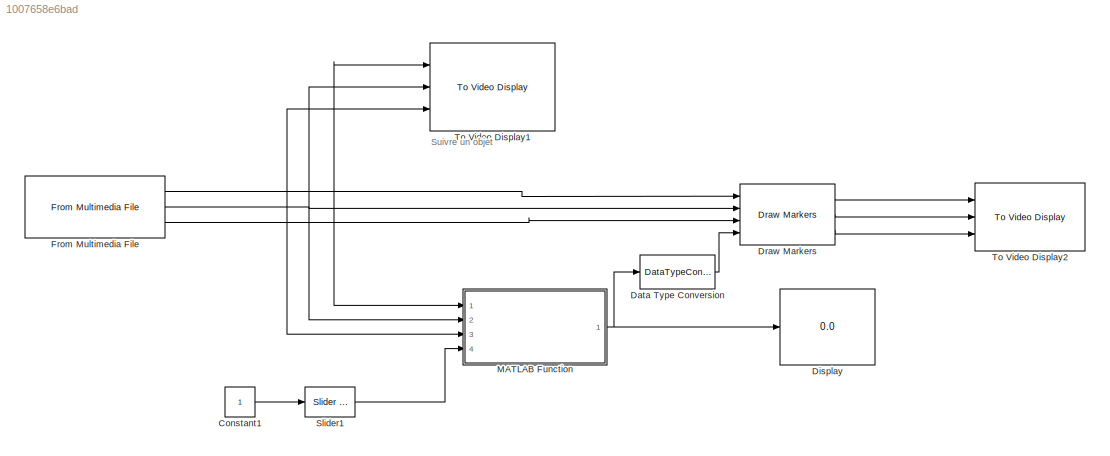
MODEL slx_1007658e6bad
KIND model
CONFIG AbsTol = auto
CONFIG EnableMultiTasking = on
CONFIG FixedStep = auto
CONFIG MaxStep = auto
CONFIG MinStep = auto
CONFIG RelTol = 1e-3
CONFIG SampleTimeConstraint = Unconstrained
CONFIG SolverName = ode45
CONFIG StartTime = 0.0
CONFIG StopTime = inf
BLOCK [Constant] Constant1
  OutDataTypeStr = uint8
  SampleTime = 0.1
BLOCK [DataTypeConversion] Data Type Conversion
  RndMeth = Floor
  SaturateOnIntegerOverflow = off
BLOCK [Display] Display
  Decimation = 1
  Ports = [1]
BLOCK [Reference] Draw Markers  REF=visiontextngfix/Draw Markers
  Ports = [4, 3]
  SourceBlock = visiontextngfix/Draw Markers
  SourceProductBaseCode = VP
  SourceType = Draw Markers
BLOCK [Reference] From Multimedia File  REF=dspvision/From Multimedia File
  Ports = [0, 3]
  SourceBlock = dspvision/From Multimedia File
  SourceProductBaseCode = DS,HW,VP
  SourceType = From Multimedia File
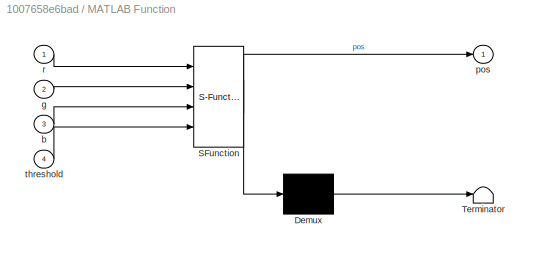
BLOCK [SubSystem] MATLAB Function
  ErrorFcn = Stateflow.Translate.translate
  PermitHierarchicalResolution = ExplicitOnly
  Ports = [4, 1]
  RequestExecContextInheritance = off
  SFBlockType = MATLAB Function
  TreatAsAtomicUnit = on
BLOCK [Demux] MATLAB Function/ Demux 
  Outputs = 1
  Ports = [1, 1]
BLOCK [S-Function] MATLAB Function/ SFunction 
  EnableBusSupport = off
  FunctionName = sf_sfun
  PortCounts = [4 2]
  Ports = [4, 2]
  SFcnIsStateOwnerBlock = off
  SFunctionDeploymentMode = off
  Tag = Stateflow S-Function 1
BLOCK [Terminator] MATLAB Function/ Terminator 
BLOCK [Inport] MATLAB Function/b
  Port = 3
BLOCK [Inport] MATLAB Function/g
  Port = 2
BLOCK [Outport] MATLAB Function/pos
  VectorParamsAs1DForOutWhenUnconnected = off
BLOCK [Inport] MATLAB Function/r
BLOCK [Inport] MATLAB Function/threshold
  Port = 4
BLOCK [Reference] Slider1  REF=simulink/Math
Operations/Slider
Gain
  Ports = [1, 1]
  SourceBlock = simulink/Math\nOperations/Slider\nGain
  SourceProductBaseCode = SL
  SourceType = Slider Gain
BLOCK [Reference] To Video Display1  REF=visionsinks/To Video Display
  Ports = [3]
  SourceBlock = visionsinks/To Video Display
  SourceProductBaseCode = VP
  SourceType = To Video Display
BLOCK [Reference] To Video Display2  REF=visionsinks/To Video Display
  Ports = [3]
  SourceBlock = visionsinks/To Video Display
  SourceProductBaseCode = VP
  SourceType = To Video Display
ANNOTATION (root): Suivre un objet
LINE Constant1:1 -> Slider1:1
LINE Data Type Conversion:1 -> Draw Markers:4
LINE Draw Markers:1 -> To Video Display2:1
LINE Draw Markers:2 -> To Video Display2:2
LINE Draw Markers:3 -> To Video Display2:3
NET From Multimedia File:1 -> Draw Markers:1, MATLAB Function:1, To Video Display1:1
NET From Multimedia File:2 -> Draw Markers:2, MATLAB Function:2, To Video Display1:2
NET From Multimedia File:3 -> Draw Markers:3, MATLAB Function:3, To Video Display1:3
NET MATLAB Function:1 -> Data Type Conversion:1, Display:1
LINE Slider1:1 -> MATLAB Function:4
note: NET lines group one-source signal fan-out (src -> all destinations, sorted); 1:1 wires keep LINE
CHART MATLAB Function states=1 transitions=1
  STATE_LABEL 'eML_blk_kernel()'
  STATE_LABEL 'SCRIPT:\nfunction pos = findBall(r,g,b,threshold)\n%#codegen\n%% Calculate Green\n% Then we perform an arithmetic operation on the matrices as a whole to try\n% to create one matrix that represents an intensity of green.\njustGreen = g - r/2 - b/2;\n\n%% Threshold the image\n% Now we can set a threshold to separate the parts of the image that we\n% consider to be green from the rest.\nbw = justGreen > thresh...<+226ch>'
CHART  states=0 transitions=0
